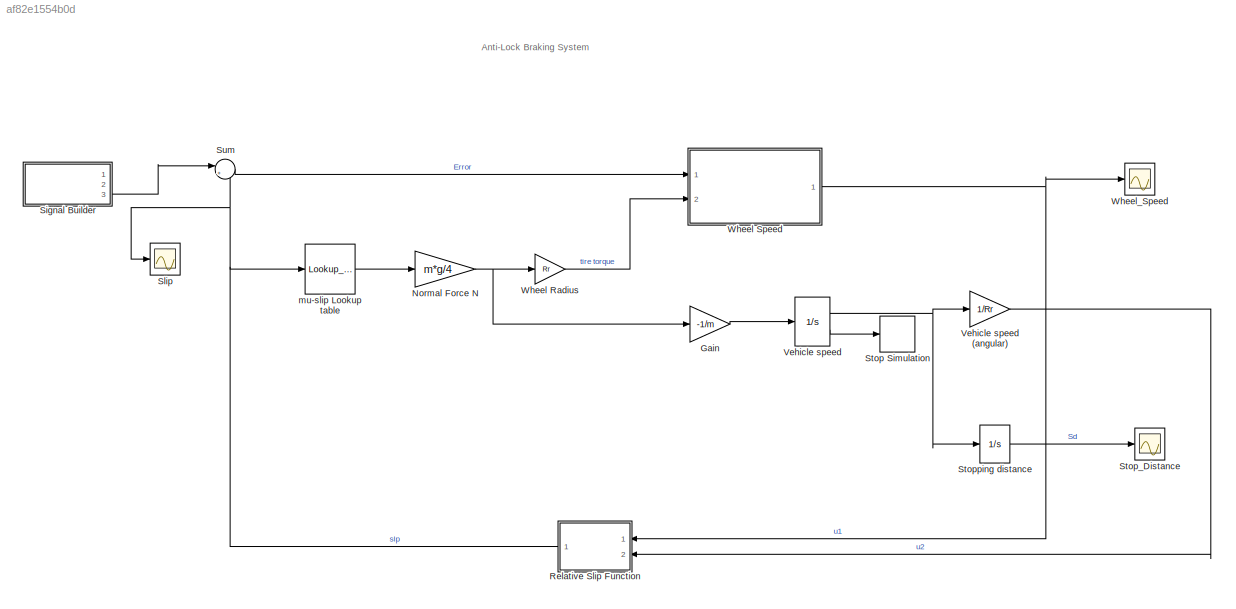
MODEL slx_af82e1554b0d
KIND model
CONFIG AbsTol = 1e-6
CONFIG EnableMultiTasking = off
CONFIG FixedStep = auto
CONFIG MaxStep = 0.01
CONFIG MinStep = auto
CONFIG PreLoadFcn = %Initialization\n\nProb3;
CONFIG RelTol = 1e-3
CONFIG SampleTimeConstraint = Unconstrained
CONFIG Solver = ode45
CONFIG SolverName = ode45
CONFIG StartTime = 0.0
CONFIG StopTime = 25
BLOCK [Gain] Gain
  Gain = -1/m
BLOCK [Gain] Normal Force N
  Gain = m*g/4
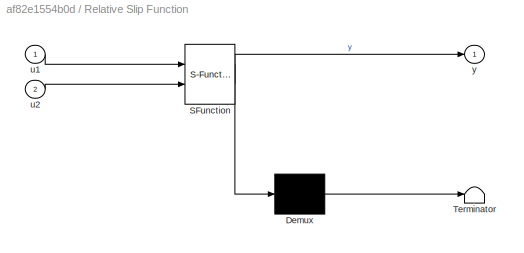
BLOCK [SubSystem] Relative Slip Function
  ErrorFcn = Stateflow.Translate.translate
  PermitHierarchicalResolution = ExplicitOnly
  Ports = [2, 1]
  RequestExecContextInheritance = off
  SFBlockType = MATLAB Function
  TreatAsAtomicUnit = on
BLOCK [Demux] Relative Slip Function/ Demux 
  Outputs = 1
  Ports = [1, 1]
BLOCK [S-Function] Relative Slip Function/ SFunction 
  EnableBusSupport = on
  FunctionName = sf_sfun
  PortCounts = [2 2]
  Ports = [2, 2]
  SFcnIsStateOwnerBlock = off
  SFunctionDeploymentMode = off
  Tag = Stateflow S-Function 2
BLOCK [Terminator] Relative Slip Function/ Terminator 
BLOCK [Inport] Relative Slip Function/u1
BLOCK [Inport] Relative Slip Function/u2
  Port = 2
BLOCK [Outport] Relative Slip Function/y
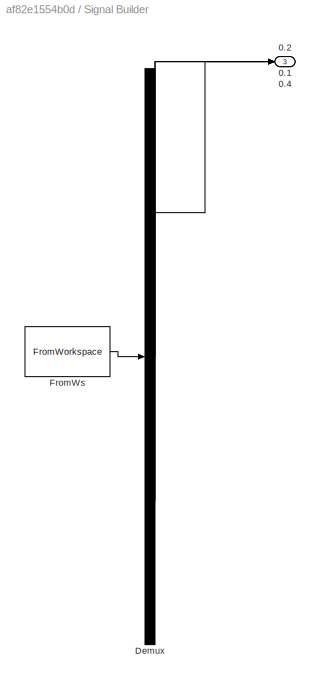
BLOCK [SubSystem] Signal Builder
  ClipboardFcn = sigbuilder_block('clipboard');
  CloseFcn = sigbuilder_block('close');
  ContinueFcn = sigbuilder_block('continue');
  CopyFcn = sigbuilder_block('copy');
  DeleteFcn = sigbuilder_block('delete');
  LoadFcn = sigbuilder_block('load',[437.6 153 550.4 359.25 ]);
  MaskHideContents = on
  ModelCloseFcn = sigbuilder_block('modelClose');
  NameChangeFcn = sigbuilder_block('namechange');
  OpenFcn = sigbuilder_block('open',[437.6 153 550.4 359.25 ]);
  PauseFcn = sigbuilder_block('pause');
  Ports = [0, 3]
  PreSaveFcn = sigbuilder_block('preSave');
  RequestExecContextInheritance = off
  StartFcn = sigbuilder_block('start');
  StopFcn = sigbuilder_block('stop');
  Tag = STV Subsys
BLOCK [Outport] Signal Builder/0.1
  Tag = STV Outport
BLOCK [Outport] Signal Builder/0.2
  Port = 2
  Tag = STV Outport
BLOCK [Outport] Signal Builder/0.4
  Port = 3
  Tag = STV Outport
BLOCK [Demux] Signal Builder/Demux
  DisplayOption = none
  Outputs = 3
  Ports = [1, 3]
  Tag = STV Demux
BLOCK [FromWorkspace] Signal Builder/FromWs
  Tag = STV FromWs
  VariableName = tuvar
BLOCK [Scope] Slip
  Floating = off
  NumInputPorts = 1
  Ports = [1]
  ScopeSpecificationString = Simulink.scopes.TimeScopeBlockCfg('CurrentConfiguration', extmgr.ConfigurationSet(extmgr.Configuration('Core','General UI',true),extmgr.Configuration('Core','Source UI',true),extmgr.Configuration('Sources','WiredSimulink',true,'DataLoggingVariableName','ScopeData3'),extmgr.Configuration('Visuals','Time Domain',true,'SerializedDisplays',{struct('MinYLimReal','-0.125','MaxYLimReal','1.125','YLabelRe...<+1378ch>
BLOCK [Stop] Stop Simulation
BLOCK [Scope] Stop_Distance
  Floating = off
  NumInputPorts = 1
  Ports = [1]
  ScopeSpecificationString = Simulink.scopes.TimeScopeBlockCfg('CurrentConfiguration', extmgr.ConfigurationSet(extmgr.Configuration('Core','General UI',true),extmgr.Configuration('Core','Source UI',true),extmgr.Configuration('Sources','WiredSimulink',true,'DataLoggingVariableName','ScopeData2'),extmgr.Configuration('Visuals','Time Domain',true,'SerializedDisplays',{struct('MinYLimReal','-57.47549','MaxYLimReal','517.27939','Y...<+1371ch>
BLOCK [Integrator] Stopping distance
  LowerSaturationLimit = 0
  Ports = [1, 1]
  UpperSaturationLimit = 1000
BLOCK [Sum] Sum
  Inputs = |+-
  Ports = [2, 1]
BLOCK [Integrator] Vehicle speed
  InitialCondition = v0
  LimitOutput = on
  LowerSaturationLimit = 0
  Ports = [1, 2]
  ShowSaturationPort = on
  UpperSaturationLimit = 1000
BLOCK [Gain] Vehicle speed (angular)
  Gain = 1/Rr
  OutDataTypeStr = Inherit: Same as input
  ParamDataTypeStr = Inherit: Same as input
  SaturateOnIntegerOverflow = on
BLOCK [Gain] Wheel Radius
  Gain = Rr
BLOCK [ModelReference] Wheel Speed
  ModelNameDialog = Wheel_Speed_System
  ModelReferenceVersion = 1.9
  Ports = [2, 1]
BLOCK [Scope] Wheel_Speed
  Floating = off
  NumInputPorts = 1
  Ports = [1]
  ScopeSpecificationString = Simulink.scopes.TimeScopeBlockCfg('CurrentConfiguration', extmgr.ConfigurationSet(extmgr.Configuration('Core','General UI',true),extmgr.Configuration('Core','Source UI',true),extmgr.Configuration('Sources','WiredSimulink',true),extmgr.Configuration('Visuals','Time Domain',true,'SerializedDisplays',{struct('MinYLimReal','-4.4','MaxYLimReal','39.6','YLabelReal','','MinYLimMag','0.00000','MaxYLimMag'...<+1331ch>
BLOCK [Lookup_n-D] mu-slip Lookup table
  BreakpointsForDimension1 = slip
  NumberOfTableDimensions = 1
  Ports = [1, 1]
  SaturateOnIntegerOverflow = on
  Table = mu
ANNOTATION (root): Anti-Lock Braking System
LINE Gain:1 -> Vehicle speed:1
NET Normal Force N:1 -> Gain:1, Wheel Radius:1
NET Relative Slip Function:1 -> Slip:1, Sum:2, mu-slip Lookup table:1
LINE Signal Builder:3 -> Sum:1
LINE Stopping distance:1 -> Stop_Distance:1
LINE Sum:1 -> Wheel Speed:1
LINE Vehicle speed (angular):1 -> Relative Slip Function:2
NET Vehicle speed:1 -> Stopping distance:1, Vehicle speed (angular):1
LINE Vehicle speed:2 -> Stop Simulation:1
LINE Wheel Radius:1 -> Wheel Speed:2
NET Wheel Speed:1 -> Relative Slip Function:1, Wheel_Speed:1
LINE mu-slip Lookup table:1 -> Normal Force N:1
note: NET lines group one-source signal fan-out (src -> all destinations, sorted); 1:1 wires keep LINE
CHART Relative Slip Function states=1 transitions=1
  STATE_LABEL 'eML_blk_kernel()'
  STATE_LABEL 'SCRIPT:\nfunction y = fcn(u1,u2)\n\ny = 1.0-u1/(u2+(u2==0)*eps);\n%u1- wheel angular velocity\n%u2- vehicle angular velocity'
CHART  states=0 transitions=0
